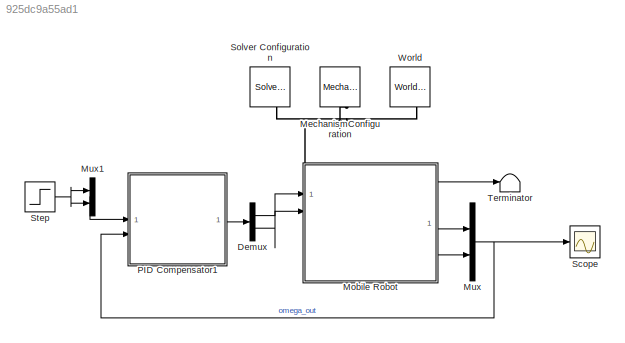
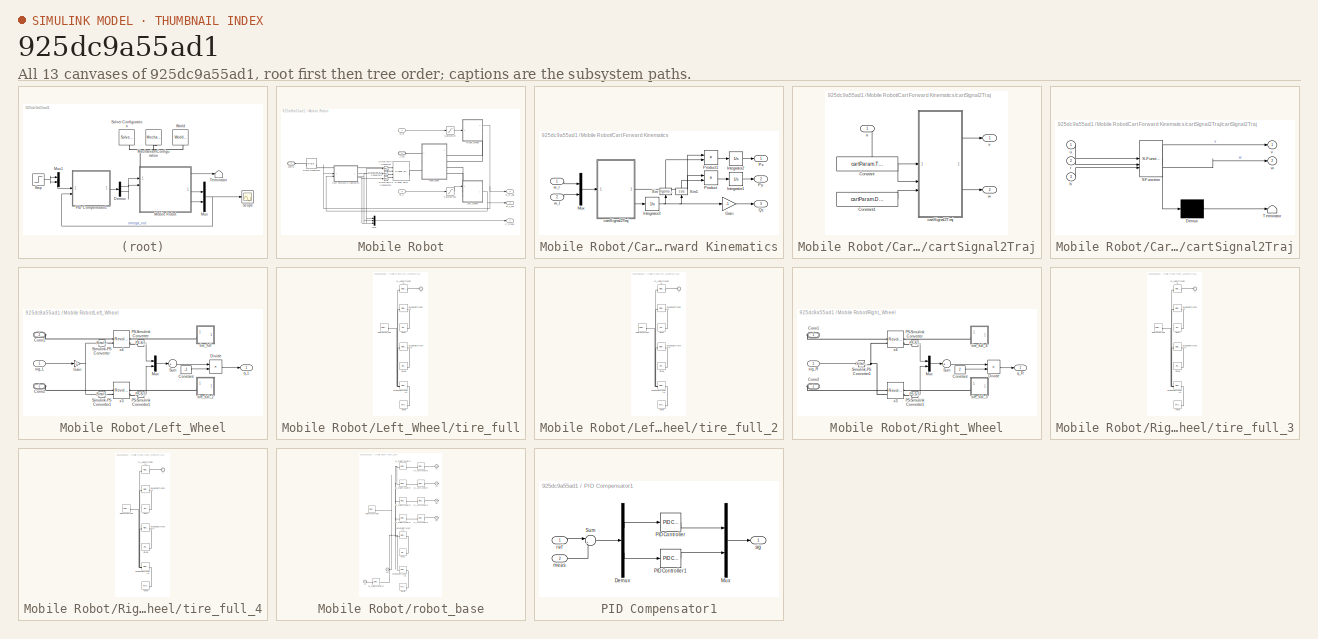
[diagram: thumbnail index - all 13 canvases of the model, root first then tree order]
MODEL slx_925dc9a55ad1
KIND model
CONFIG AbsTol = auto
CONFIG EnableMultiTasking = off
CONFIG FixedStep = auto
CONFIG MaxStep = auto
CONFIG MinStep = auto
CONFIG RelTol = 1e-3
CONFIG SampleTimeConstraint = Unconstrained
CONFIG SolverName = VariableStepAuto
CONFIG StartTime = 0.0
CONFIG StopTime = 3
BLOCK [Demux] Demux
  Outputs = 2
BLOCK [Reference] MechanismConfiguration  REF=sm_lib/Utilities/Mechanism
Configuration
  NameLocation = left
  SourceBlock = sm_lib/Utilities/Mechanism\nConfiguration
  SourceType = Mechanism\nConfiguration
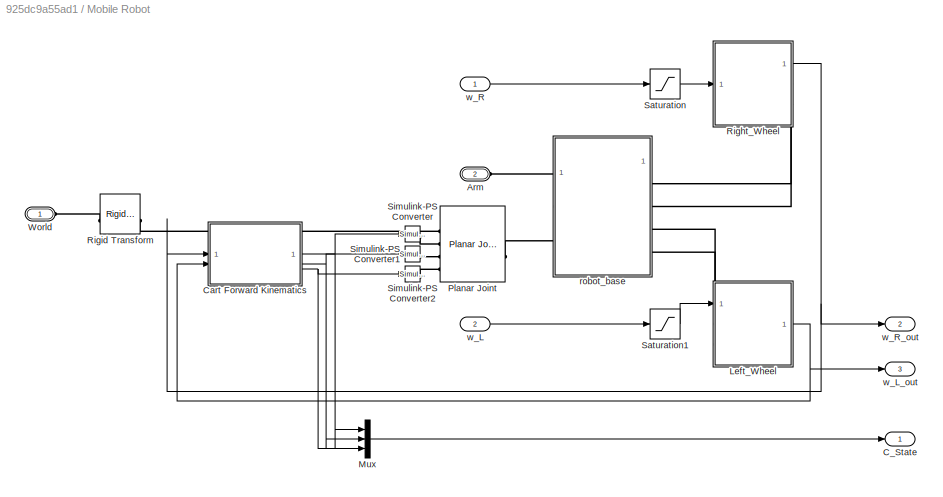
BLOCK [SubSystem] Mobile Robot
  PortSchema = {"entries":[{"content":{"sides":[{"content":{"connectorIds":["In1","In2"]},"type":"ConnectorPlacement.EquallySpacedRectSide","uuid":"d865e24f-6e94-4741-8663-2233d7cc6fe3"},{"content":{"connectorIds":["Out1","Out2","Out3"],"side":"RIGHT"},"type":"ConnectorPlacement.EquallySpacedRectSide","uuid":"e7ebc92e-d028-4010-9d41-bb6c59c0597a"},{"content":{"connectorIds":["LConn1","LConn2"],"side":"TOP"},"typ...<+277ch>
BLOCK [PMIOPort] Mobile Robot/Arm
  Port = 2
  Side = Left
BLOCK [Outport] Mobile Robot/C_State
BLOCK [SubSystem] Mobile Robot/Cart Forward Kinematics
BLOCK [Gain] Mobile Robot/Cart Forward Kinematics/Gain
  Gain = -1
BLOCK [Integrator] Mobile Robot/Cart Forward Kinematics/Integrator1
BLOCK [Integrator] Mobile Robot/Cart Forward Kinematics/Integrator2
BLOCK [Integrator] Mobile Robot/Cart Forward Kinematics/Integrator3
BLOCK [Mux] Mobile Robot/Cart Forward Kinematics/Mux
  DisplayOption = bar
  Inputs = 2
BLOCK [Product] Mobile Robot/Cart Forward Kinematics/Product
BLOCK [Product] Mobile Robot/Cart Forward Kinematics/Product1
BLOCK [Outport] Mobile Robot/Cart Forward Kinematics/Px
BLOCK [Outport] Mobile Robot/Cart Forward Kinematics/Py
  Port = 2
BLOCK [Outport] Mobile Robot/Cart Forward Kinematics/Qz
  Port = 3
BLOCK [Trigonometry] Mobile Robot/Cart Forward Kinematics/Sin
  NameLocation = right
BLOCK [Trigonometry] Mobile Robot/Cart Forward Kinematics/Sin1
  NameLocation = right
  Operator = cos
BLOCK [SubSystem] Mobile Robot/Cart Forward Kinematics/cartSignal2Traj
BLOCK [Constant] Mobile Robot/Cart Forward Kinematics/cartSignal2Traj/Constant
  Value = cartParam.TireRadius
BLOCK [Constant] Mobile Robot/Cart Forward Kinematics/cartSignal2Traj/Constant1
  Value = cartParam.DistanceBwTires
BLOCK [SubSystem] Mobile Robot/Cart Forward Kinematics/cartSignal2Traj/cartSignal2Traj
  ErrorFcn = Stateflow.Translate.translate
  LibrarySourceBlock = simulink/User-Defined\nFunctions/MATLAB Function
  PermitHierarchicalResolution = ExplicitOnly
  SFBlockType = MATLAB Function
  TreatAsAtomicUnit = on
BLOCK [Demux] Mobile Robot/Cart Forward Kinematics/cartSignal2Traj/cartSignal2Traj/ Demux 
  Outputs = 1
BLOCK [S-Function] Mobile Robot/Cart Forward Kinematics/cartSignal2Traj/cartSignal2Traj/ SFunction 
  EnableBusSupport = on
  FunctionName = sf_sfun
  PortCounts = [3 3]
  SFcnIsStateOwnerBlock = off
  SFunctionDeploymentMode = off
  Tag = Stateflow S-Function 5
BLOCK [Terminator] Mobile Robot/Cart Forward Kinematics/cartSignal2Traj/cartSignal2Traj/ Terminator 
BLOCK [Inport] Mobile Robot/Cart Forward Kinematics/cartSignal2Traj/cartSignal2Traj/b
  Port = 3
BLOCK [Inport] Mobile Robot/Cart Forward Kinematics/cartSignal2Traj/cartSignal2Traj/r
  Port = 2
BLOCK [Inport] Mobile Robot/Cart Forward Kinematics/cartSignal2Traj/cartSignal2Traj/u
BLOCK [Outport] Mobile Robot/Cart Forward Kinematics/cartSignal2Traj/cartSignal2Traj/v
BLOCK [Outport] Mobile Robot/Cart Forward Kinematics/cartSignal2Traj/cartSignal2Traj/w
  Port = 2
BLOCK [Inport] Mobile Robot/Cart Forward Kinematics/cartSignal2Traj/u
BLOCK [Outport] Mobile Robot/Cart Forward Kinematics/cartSignal2Traj/v
BLOCK [Outport] Mobile Robot/Cart Forward Kinematics/cartSignal2Traj/w
  Port = 2
BLOCK [Inport] Mobile Robot/Cart Forward Kinematics/w_l
  Port = 2
BLOCK [Inport] Mobile Robot/Cart Forward Kinematics/w_r
BLOCK [SubSystem] Mobile Robot/Left_Wheel
  PortSchema = {"entries":[{"content":{"sides":[{"content":{"connectorIds":["In1"]},"type":"ConnectorPlacement.EquallySpacedRectSide","uuid":"fd18bf8d-3737-4723-9876-24822d4defed"},{"content":{"connectorIds":["Out1"],"side":"RIGHT"},"type":"ConnectorPlacement.EquallySpacedRectSide","uuid":"10024688-4880-4c6e-a930-73264966df0e"},{"content":{"connectorIds":["LConn1","LConn2"],"side":"TOP"},"type":"ConnectorPlaceme...<+383ch>
BLOCK [PMIOPort] Mobile Robot/Left_Wheel/Conn1
  Port = 2
  Side = Left
BLOCK [PMIOPort] Mobile Robot/Left_Wheel/Conn2
  Side = Left
BLOCK [Constant] Mobile Robot/Left_Wheel/Constant
  Value = -2
BLOCK [Product] Mobile Robot/Left_Wheel/Divide
  Inputs = */
BLOCK [Gain] Mobile Robot/Left_Wheel/Gain
  Gain = -1
BLOCK [Mux] Mobile Robot/Left_Wheel/Mux
  DisplayOption = bar
  Inputs = 2
BLOCK [Reference] Mobile Robot/Left_Wheel/PS-Simulink Converter  REF=nesl_utility/PS-Simulink
Converter
  SourceBlock = nesl_utility/PS-Simulink\nConverter
  SourceType = PS-Simulink\nConverter
BLOCK [Reference] Mobile Robot/Left_Wheel/PS-Simulink Converter1  REF=nesl_utility/PS-Simulink
Converter
  SourceBlock = nesl_utility/PS-Simulink\nConverter
  SourceType = PS-Simulink\nConverter
BLOCK [Reference] Mobile Robot/Left_Wheel/Simulink-PS Converter  REF=nesl_utility/Simulink-PS
Converter
  SourceBlock = nesl_utility/Simulink-PS\nConverter
  SourceType = Simulink-PS\nConverter
BLOCK [Reference] Mobile Robot/Left_Wheel/Simulink-PS Converter1  REF=nesl_utility/Simulink-PS
Converter
  SourceBlock = nesl_utility/Simulink-PS\nConverter
  SourceType = Simulink-PS\nConverter
BLOCK [Sum] Mobile Robot/Left_Wheel/Sum
  Inputs = +
BLOCK [Outport] Mobile Robot/Left_Wheel/q_L
BLOCK [Inport] Mobile Robot/Left_Wheel/sig_L
BLOCK [SubSystem] Mobile Robot/Left_Wheel/tire_full
BLOCK [PMIOPort] Mobile Robot/Left_Wheel/tire_full/F
  Side = Left
BLOCK [Reference] Mobile Robot/Left_Wheel/tire_full/Inertia  REF=sm_lib/Body Elements/Inertia
  SourceBlock = sm_lib/Body Elements/Inertia
  SourceType = Inertia
BLOCK [Reference] Mobile Robot/Left_Wheel/tire_full/InertiaOriginTransform  REF=sm_lib/Frames and
Transforms/Rigid
Transform
  SourceBlock = sm_lib/Frames and\nTransforms/Rigid\nTransform
  SourceType = Rigid\nTransform
BLOCK [Reference] Mobile Robot/Left_Wheel/tire_full/ReferenceFrame  REF=sm_lib/Frames and
Transforms/Reference
Frame
  SourceBlock = sm_lib/Frames and\nTransforms/Reference\nFrame
  SourceType = Reference\nFrame
BLOCK [Reference] Mobile Robot/Left_Wheel/tire_full/Visual  REF=sm_lib/Body Elements/File Solid
  SourceBlock = sm_lib/Body Elements/File Solid
  SourceType = File Solid
BLOCK [Reference] Mobile Robot/Left_Wheel/tire_full/Visual1  REF=sm_lib/Body Elements/File Solid
  SourceBlock = sm_lib/Body Elements/File Solid
  SourceType = File Solid
BLOCK [Reference] Mobile Robot/Left_Wheel/tire_full/VisualOrigin1Transform  REF=sm_lib/Frames and
Transforms/Rigid
Transform
  SourceBlock = sm_lib/Frames and\nTransforms/Rigid\nTransform
  SourceType = Rigid\nTransform
BLOCK [Reference] Mobile Robot/Left_Wheel/tire_full/VisualOriginTransform  REF=sm_lib/Frames and
Transforms/Rigid
Transform
  SourceBlock = sm_lib/Frames and\nTransforms/Rigid\nTransform
  SourceType = Rigid\nTransform
BLOCK [Reference] Mobile Robot/Left_Wheel/tire_full/x1_AxisInvTransform  REF=sm_lib/Frames and
Transforms/Rigid
Transform
  SourceBlock = sm_lib/Frames and\nTransforms/Rigid\nTransform
  SourceType = Rigid\nTransform
BLOCK [SubSystem] Mobile Robot/Left_Wheel/tire_full_2
BLOCK [PMIOPort] Mobile Robot/Left_Wheel/tire_full_2/F
  Side = Left
BLOCK [Reference] Mobile Robot/Left_Wheel/tire_full_2/Inertia  REF=sm_lib/Body Elements/Inertia
  SourceBlock = sm_lib/Body Elements/Inertia
  SourceType = Inertia
BLOCK [Reference] Mobile Robot/Left_Wheel/tire_full_2/InertiaOriginTransform  REF=sm_lib/Frames and
Transforms/Rigid
Transform
  SourceBlock = sm_lib/Frames and\nTransforms/Rigid\nTransform
  SourceType = Rigid\nTransform
BLOCK [Reference] Mobile Robot/Left_Wheel/tire_full_2/ReferenceFrame  REF=sm_lib/Frames and
Transforms/Reference
Frame
  SourceBlock = sm_lib/Frames and\nTransforms/Reference\nFrame
  SourceType = Reference\nFrame
BLOCK [Reference] Mobile Robot/Left_Wheel/tire_full_2/Visual  REF=sm_lib/Body Elements/File Solid
  SourceBlock = sm_lib/Body Elements/File Solid
  SourceType = File Solid
BLOCK [Reference] Mobile Robot/Left_Wheel/tire_full_2/Visual1  REF=sm_lib/Body Elements/File Solid
  SourceBlock = sm_lib/Body Elements/File Solid
  SourceType = File Solid
BLOCK [Reference] Mobile Robot/Left_Wheel/tire_full_2/VisualOrigin1Transform  REF=sm_lib/Frames and
Transforms/Rigid
Transform
  SourceBlock = sm_lib/Frames and\nTransforms/Rigid\nTransform
  SourceType = Rigid\nTransform
BLOCK [Reference] Mobile Robot/Left_Wheel/tire_full_2/VisualOriginTransform  REF=sm_lib/Frames and
Transforms/Rigid
Transform
  SourceBlock = sm_lib/Frames and\nTransforms/Rigid\nTransform
  SourceType = Rigid\nTransform
BLOCK [Reference] Mobile Robot/Left_Wheel/tire_full_2/x2_AxisInvTransform  REF=sm_lib/Frames and
Transforms/Rigid
Transform
  SourceBlock = sm_lib/Frames and\nTransforms/Rigid\nTransform
  SourceType = Rigid\nTransform
BLOCK [Reference] Mobile Robot/Left_Wheel/x3  REF=sm_lib/Joints/Revolute Joint
  SourceBlock = sm_lib/Joints/Revolute Joint
  SourceType = Revolute Joint
BLOCK [Reference] Mobile Robot/Left_Wheel/x4  REF=sm_lib/Joints/Revolute Joint
  SourceBlock = sm_lib/Joints/Revolute Joint
  SourceType = Revolute Joint
BLOCK [Mux] Mobile Robot/Mux
  DisplayOption = bar
  Inputs = 3
BLOCK [Reference] Mobile Robot/Planar Joint  REF=sm_lib/Joints/Planar Joint
  SourceBlock = sm_lib/Joints/Planar Joint
  SourceType = Planar Joint
BLOCK [SubSystem] Mobile Robot/Right_Wheel
  NameLocation = top
  PortSchema = {"entries":[{"content":{"sides":[{"content":{"connectorIds":["In1"]},"type":"ConnectorPlacement.EquallySpacedRectSide","uuid":"fd18bf8d-3737-4723-9876-24822d4defed"},{"content":{"connectorIds":["Out1"],"side":"RIGHT"},"type":"ConnectorPlacement.EquallySpacedRectSide","uuid":"10024688-4880-4c6e-a930-73264966df0e"},{"content":{"side":"TOP"},"type":"ConnectorPlacement.EquallySpacedRectSide","uuid":"d...<+383ch>
BLOCK [PMIOPort] Mobile Robot/Right_Wheel/Conn1
  Side = Right
BLOCK [PMIOPort] Mobile Robot/Right_Wheel/Conn2
  Port = 2
  Side = Right
BLOCK [Constant] Mobile Robot/Right_Wheel/Constant
  Value = 2
BLOCK [Product] Mobile Robot/Right_Wheel/Divide
  Inputs = */
BLOCK [Mux] Mobile Robot/Right_Wheel/Mux
  DisplayOption = bar
  Inputs = 2
BLOCK [Reference] Mobile Robot/Right_Wheel/PS-Simulink Converter  REF=nesl_utility/PS-Simulink
Converter
  SourceBlock = nesl_utility/PS-Simulink\nConverter
  SourceType = PS-Simulink\nConverter
BLOCK [Reference] Mobile Robot/Right_Wheel/PS-Simulink Converter1  REF=nesl_utility/PS-Simulink
Converter
  SourceBlock = nesl_utility/PS-Simulink\nConverter
  SourceType = PS-Simulink\nConverter
BLOCK [Reference] Mobile Robot/Right_Wheel/Simulink-PS Converter1  REF=nesl_utility/Simulink-PS
Converter
  SourceBlock = nesl_utility/Simulink-PS\nConverter
  SourceType = Simulink-PS\nConverter
BLOCK [Sum] Mobile Robot/Right_Wheel/Sum
  Inputs = +
BLOCK [Outport] Mobile Robot/Right_Wheel/q_R
BLOCK [Inport] Mobile Robot/Right_Wheel/sig_R
BLOCK [SubSystem] Mobile Robot/Right_Wheel/tire_full_3
BLOCK [PMIOPort] Mobile Robot/Right_Wheel/tire_full_3/F
  Side = Left
BLOCK [Reference] Mobile Robot/Right_Wheel/tire_full_3/Inertia  REF=sm_lib/Body Elements/Inertia
  SourceBlock = sm_lib/Body Elements/Inertia
  SourceType = Inertia
BLOCK [Reference] Mobile Robot/Right_Wheel/tire_full_3/InertiaOriginTransform  REF=sm_lib/Frames and
Transforms/Rigid
Transform
  SourceBlock = sm_lib/Frames and\nTransforms/Rigid\nTransform
  SourceType = Rigid\nTransform
BLOCK [Reference] Mobile Robot/Right_Wheel/tire_full_3/ReferenceFrame  REF=sm_lib/Frames and
Transforms/Reference
Frame
  SourceBlock = sm_lib/Frames and\nTransforms/Reference\nFrame
  SourceType = Reference\nFrame
BLOCK [Reference] Mobile Robot/Right_Wheel/tire_full_3/Visual  REF=sm_lib/Body Elements/File Solid
  SourceBlock = sm_lib/Body Elements/File Solid
  SourceType = File Solid
BLOCK [Reference] Mobile Robot/Right_Wheel/tire_full_3/Visual1  REF=sm_lib/Body Elements/File Solid
  SourceBlock = sm_lib/Body Elements/File Solid
  SourceType = File Solid
BLOCK [Reference] Mobile Robot/Right_Wheel/tire_full_3/VisualOrigin1Transform  REF=sm_lib/Frames and
Transforms/Rigid
Transform
  SourceBlock = sm_lib/Frames and\nTransforms/Rigid\nTransform
  SourceType = Rigid\nTransform
BLOCK [Reference] Mobile Robot/Right_Wheel/tire_full_3/VisualOriginTransform  REF=sm_lib/Frames and
Transforms/Rigid
Transform
  SourceBlock = sm_lib/Frames and\nTransforms/Rigid\nTransform
  SourceType = Rigid\nTransform
BLOCK [Reference] Mobile Robot/Right_Wheel/tire_full_3/x3_AxisInvTransform  REF=sm_lib/Frames and
Transforms/Rigid
Transform
  SourceBlock = sm_lib/Frames and\nTransforms/Rigid\nTransform
  SourceType = Rigid\nTransform
BLOCK [SubSystem] Mobile Robot/Right_Wheel/tire_full_4
BLOCK [PMIOPort] Mobile Robot/Right_Wheel/tire_full_4/F
  Side = Left
BLOCK [Reference] Mobile Robot/Right_Wheel/tire_full_4/Inertia  REF=sm_lib/Body Elements/Inertia
  SourceBlock = sm_lib/Body Elements/Inertia
  SourceType = Inertia
BLOCK [Reference] Mobile Robot/Right_Wheel/tire_full_4/InertiaOriginTransform  REF=sm_lib/Frames and
Transforms/Rigid
Transform
  SourceBlock = sm_lib/Frames and\nTransforms/Rigid\nTransform
  SourceType = Rigid\nTransform
BLOCK [Reference] Mobile Robot/Right_Wheel/tire_full_4/ReferenceFrame  REF=sm_lib/Frames and
Transforms/Reference
Frame
  SourceBlock = sm_lib/Frames and\nTransforms/Reference\nFrame
  SourceType = Reference\nFrame
BLOCK [Reference] Mobile Robot/Right_Wheel/tire_full_4/Visual  REF=sm_lib/Body Elements/File Solid
  SourceBlock = sm_lib/Body Elements/File Solid
  SourceType = File Solid
BLOCK [Reference] Mobile Robot/Right_Wheel/tire_full_4/Visual1  REF=sm_lib/Body Elements/File Solid
  SourceBlock = sm_lib/Body Elements/File Solid
  SourceType = File Solid
BLOCK [Reference] Mobile Robot/Right_Wheel/tire_full_4/VisualOrigin1Transform  REF=sm_lib/Frames and
Transforms/Rigid
Transform
  SourceBlock = sm_lib/Frames and\nTransforms/Rigid\nTransform
  SourceType = Rigid\nTransform
BLOCK [Reference] Mobile Robot/Right_Wheel/tire_full_4/VisualOriginTransform  REF=sm_lib/Frames and
Transforms/Rigid
Transform
  SourceBlock = sm_lib/Frames and\nTransforms/Rigid\nTransform
  SourceType = Rigid\nTransform
BLOCK [Reference] Mobile Robot/Right_Wheel/tire_full_4/x4_AxisInvTransform  REF=sm_lib/Frames and
Transforms/Rigid
Transform
  SourceBlock = sm_lib/Frames and\nTransforms/Rigid\nTransform
  SourceType = Rigid\nTransform
BLOCK [Reference] Mobile Robot/Right_Wheel/x3  REF=sm_lib/Joints/Revolute Joint
  SourceBlock = sm_lib/Joints/Revolute Joint
  SourceType = Revolute Joint
BLOCK [Reference] Mobile Robot/Right_Wheel/x4  REF=sm_lib/Joints/Revolute Joint
  SourceBlock = sm_lib/Joints/Revolute Joint
  SourceType = Revolute Joint
BLOCK [Reference] Mobile Robot/Rigid Transform  REF=sm_lib/Frames and
Transforms/Rigid
Transform
  SourceBlock = sm_lib/Frames and\nTransforms/Rigid\nTransform
  SourceType = Rigid\nTransform
BLOCK [Saturate] Mobile Robot/Saturation
  Commented = through
  LowerLimit = -cartParam.motorSpeed
  UpperLimit = cartParam.motorSpeed
BLOCK [Saturate] Mobile Robot/Saturation1
  Commented = through
  LowerLimit = -cartParam.motorSpeed
  UpperLimit = cartParam.motorSpeed
BLOCK [Reference] Mobile Robot/Simulink-PS Converter  REF=nesl_utility/Simulink-PS
Converter
  SourceBlock = nesl_utility/Simulink-PS\nConverter
  SourceType = Simulink-PS\nConverter
BLOCK [Reference] Mobile Robot/Simulink-PS Converter1  REF=nesl_utility/Simulink-PS
Converter
  SourceBlock = nesl_utility/Simulink-PS\nConverter
  SourceType = Simulink-PS\nConverter
BLOCK [Reference] Mobile Robot/Simulink-PS Converter2  REF=nesl_utility/Simulink-PS
Converter
  SourceBlock = nesl_utility/Simulink-PS\nConverter
  SourceType = Simulink-PS\nConverter
BLOCK [PMIOPort] Mobile Robot/World
  Side = Left
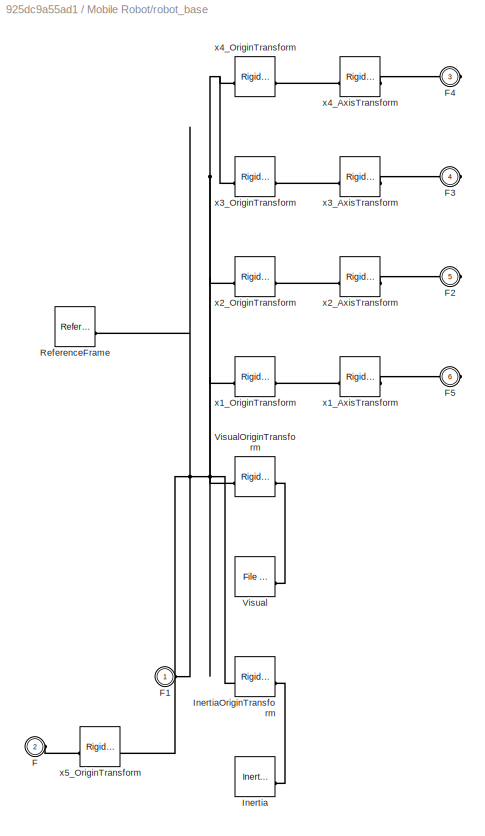
BLOCK [SubSystem] Mobile Robot/robot_base
BLOCK [PMIOPort] Mobile Robot/robot_base/F
  Port = 2
  Side = Left
BLOCK [PMIOPort] Mobile Robot/robot_base/F1
  Side = Left
BLOCK [PMIOPort] Mobile Robot/robot_base/F2
  Port = 5
  Side = Right
BLOCK [PMIOPort] Mobile Robot/robot_base/F3
  Port = 4
  Side = Right
BLOCK [PMIOPort] Mobile Robot/robot_base/F4
  Port = 3
  Side = Right
BLOCK [PMIOPort] Mobile Robot/robot_base/F5
  Port = 6
  Side = Right
BLOCK [Reference] Mobile Robot/robot_base/Inertia  REF=sm_lib/Body Elements/Inertia
  SourceBlock = sm_lib/Body Elements/Inertia
  SourceType = Inertia
BLOCK [Reference] Mobile Robot/robot_base/InertiaOriginTransform  REF=sm_lib/Frames and
Transforms/Rigid
Transform
  SourceBlock = sm_lib/Frames and\nTransforms/Rigid\nTransform
  SourceType = Rigid\nTransform
BLOCK [Reference] Mobile Robot/robot_base/ReferenceFrame  REF=sm_lib/Frames and
Transforms/Reference
Frame
  SourceBlock = sm_lib/Frames and\nTransforms/Reference\nFrame
  SourceType = Reference\nFrame
BLOCK [Reference] Mobile Robot/robot_base/Visual  REF=sm_lib/Body Elements/File Solid
  SourceBlock = sm_lib/Body Elements/File Solid
  SourceType = File Solid
BLOCK [Reference] Mobile Robot/robot_base/VisualOriginTransform  REF=sm_lib/Frames and
Transforms/Rigid
Transform
  SourceBlock = sm_lib/Frames and\nTransforms/Rigid\nTransform
  SourceType = Rigid\nTransform
BLOCK [Reference] Mobile Robot/robot_base/x1_AxisTransform  REF=sm_lib/Frames and
Transforms/Rigid
Transform
  SourceBlock = sm_lib/Frames and\nTransforms/Rigid\nTransform
  SourceType = Rigid\nTransform
BLOCK [Reference] Mobile Robot/robot_base/x1_OriginTransform  REF=sm_lib/Frames and
Transforms/Rigid
Transform
  SourceBlock = sm_lib/Frames and\nTransforms/Rigid\nTransform
  SourceType = Rigid\nTransform
BLOCK [Reference] Mobile Robot/robot_base/x2_AxisTransform  REF=sm_lib/Frames and
Transforms/Rigid
Transform
  SourceBlock = sm_lib/Frames and\nTransforms/Rigid\nTransform
  SourceType = Rigid\nTransform
BLOCK [Reference] Mobile Robot/robot_base/x2_OriginTransform  REF=sm_lib/Frames and
Transforms/Rigid
Transform
  SourceBlock = sm_lib/Frames and\nTransforms/Rigid\nTransform
  SourceType = Rigid\nTransform
BLOCK [Reference] Mobile Robot/robot_base/x3_AxisTransform  REF=sm_lib/Frames and
Transforms/Rigid
Transform
  SourceBlock = sm_lib/Frames and\nTransforms/Rigid\nTransform
  SourceType = Rigid\nTransform
BLOCK [Reference] Mobile Robot/robot_base/x3_OriginTransform  REF=sm_lib/Frames and
Transforms/Rigid
Transform
  SourceBlock = sm_lib/Frames and\nTransforms/Rigid\nTransform
  SourceType = Rigid\nTransform
BLOCK [Reference] Mobile Robot/robot_base/x4_AxisTransform  REF=sm_lib/Frames and
Transforms/Rigid
Transform
  SourceBlock = sm_lib/Frames and\nTransforms/Rigid\nTransform
  SourceType = Rigid\nTransform
BLOCK [Reference] Mobile Robot/robot_base/x4_OriginTransform  REF=sm_lib/Frames and
Transforms/Rigid
Transform
  SourceBlock = sm_lib/Frames and\nTransforms/Rigid\nTransform
  SourceType = Rigid\nTransform
BLOCK [Reference] Mobile Robot/robot_base/x5_OriginTransform  REF=sm_lib/Frames and
Transforms/Rigid
Transform
  NameLocation = top
  SourceBlock = sm_lib/Frames and\nTransforms/Rigid\nTransform
  SourceType = Rigid\nTransform
BLOCK [Inport] Mobile Robot/w_L
  Port = 2
BLOCK [Outport] Mobile Robot/w_L_out
  Port = 3
BLOCK [Inport] Mobile Robot/w_R
BLOCK [Outport] Mobile Robot/w_R_out
  Port = 2
BLOCK [Mux] Mux
  DisplayOption = bar
  Inputs = 2
BLOCK [Mux] Mux1
  DisplayOption = bar
  Inputs = 2
BLOCK [SubSystem] PID Compensator1
BLOCK [Demux] PID Compensator1/Demux
  Outputs = 2
BLOCK [Mux] PID Compensator1/Mux
  DisplayOption = bar
  Inputs = 2
BLOCK [Reference] PID Compensator1/PID Controller  REF=slpidlib/PID Controller
  LibrarySourceBlock = simulink/Continuous/PID Controller
  SourceBlock = slpidlib/PID Controller
  SourceType = PID 1dof
BLOCK [Reference] PID Compensator1/PID Controller1  REF=slpidlib/PID Controller
  LibrarySourceBlock = simulink/Continuous/PID Controller
  SourceBlock = slpidlib/PID Controller
  SourceType = PID 1dof
BLOCK [Sum] PID Compensator1/Sum
  Inputs = |+-
BLOCK [Inport] PID Compensator1/meas
  Port = 2
BLOCK [Inport] PID Compensator1/ref
BLOCK [Outport] PID Compensator1/sig
BLOCK [Scope] Scope
  Floating = off
  NumInputPorts = 1
  ScopeSpecificationString = Simulink.scopes.TimeScopeBlockCfg('CurrentConfiguration', extmgr.ConfigurationSet(extmgr.Configuration('Core','General UI',true),extmgr.Configuration('Core','Source UI',true),extmgr.Configuration('Sources','WiredSimulink',true),extmgr.Configuration('Visuals','Time Domain',true,'SerializedDisplays',{struct('MinYLimReal','-0.12526','MaxYLimReal','1.12713','YLabelReal','','MinYLimMag','0.00000','MaxY...<+1396ch>
BLOCK [Reference] Solver Configuration  REF=nesl_utility/Solver
Configuration
  NameLocation = left
  SourceBlock = nesl_utility/Solver\nConfiguration
  SourceType = Solver\nConfiguration
BLOCK [Step] Step
  SampleTime = 0
BLOCK [Terminator] Terminator
BLOCK [Reference] World  REF=sm_lib/Frames and
Transforms/World Frame
  NameLocation = top
  SourceBlock = sm_lib/Frames and\nTransforms/World Frame
  SourceType = World Frame
LINE Demux:1 -> Mobile Robot:1
LINE Demux:2 -> Mobile Robot:2
LINE Mobile Robot/Cart Forward Kinematics/Gain:1 -> Mobile Robot/Cart Forward Kinematics/Qz:1
LINE Mobile Robot/Cart Forward Kinematics/Integrator1:1 -> Mobile Robot/Cart Forward Kinematics/Py:1
LINE Mobile Robot/Cart Forward Kinematics/Integrator2:1 -> Mobile Robot/Cart Forward Kinematics/Px:1
NET Mobile Robot/Cart Forward Kinematics/Integrator3:1 -> Mobile Robot/Cart Forward Kinematics/Gain:1, Mobile Robot/Cart Forward Kinematics/Sin1:1, Mobile Robot/Cart Forward Kinematics/Sin:1
LINE Mobile Robot/Cart Forward Kinematics/Mux:1 -> Mobile Robot/Cart Forward Kinematics/cartSignal2Traj:1
LINE Mobile Robot/Cart Forward Kinematics/Product1:1 -> Mobile Robot/Cart Forward Kinematics/Integrator2:1
LINE Mobile Robot/Cart Forward Kinematics/Product:1 -> Mobile Robot/Cart Forward Kinematics/Integrator1:1
LINE Mobile Robot/Cart Forward Kinematics/Sin1:1 -> Mobile Robot/Cart Forward Kinematics/Product:2
LINE Mobile Robot/Cart Forward Kinematics/Sin:1 -> Mobile Robot/Cart Forward Kinematics/Product1:2
LINE Mobile Robot/Cart Forward Kinematics/cartSignal2Traj/Constant1:1 -> Mobile Robot/Cart Forward Kinematics/cartSignal2Traj/cartSignal2Traj:3
LINE Mobile Robot/Cart Forward Kinematics/cartSignal2Traj/Constant:1 -> Mobile Robot/Cart Forward Kinematics/cartSignal2Traj/cartSignal2Traj:2
LINE Mobile Robot/Cart Forward Kinematics/cartSignal2Traj/cartSignal2Traj:1 -> Mobile Robot/Cart Forward Kinematics/cartSignal2Traj/v:1
LINE Mobile Robot/Cart Forward Kinematics/cartSignal2Traj/cartSignal2Traj:2 -> Mobile Robot/Cart Forward Kinematics/cartSignal2Traj/w:1
LINE Mobile Robot/Cart Forward Kinematics/cartSignal2Traj/u:1 -> Mobile Robot/Cart Forward Kinematics/cartSignal2Traj/cartSignal2Traj:1
NET Mobile Robot/Cart Forward Kinematics/cartSignal2Traj:1 -> Mobile Robot/Cart Forward Kinematics/Product1:1, Mobile Robot/Cart Forward Kinematics/Product:1
LINE Mobile Robot/Cart Forward Kinematics/cartSignal2Traj:2 -> Mobile Robot/Cart Forward Kinematics/Integrator3:1
LINE Mobile Robot/Cart Forward Kinematics/w_l:1 -> Mobile Robot/Cart Forward Kinematics/Mux:2
LINE Mobile Robot/Cart Forward Kinematics/w_r:1 -> Mobile Robot/Cart Forward Kinematics/Mux:1
NET Mobile Robot/Cart Forward Kinematics:1 -> Mobile Robot/Mux:1, Mobile Robot/Simulink-PS Converter:1
NET Mobile Robot/Cart Forward Kinematics:2 -> Mobile Robot/Mux:2, Mobile Robot/Simulink-PS Converter1:1
NET Mobile Robot/Cart Forward Kinematics:3 -> Mobile Robot/Mux:3, Mobile Robot/Simulink-PS Converter2:1
LINE Mobile Robot/Left_Wheel/Constant:1 -> Mobile Robot/Left_Wheel/Divide:2
LINE Mobile Robot/Left_Wheel/Divide:1 -> Mobile Robot/Left_Wheel/q_L:1
NET Mobile Robot/Left_Wheel/Gain:1 -> Mobile Robot/Left_Wheel/Simulink-PS Converter1:1, Mobile Robot/Left_Wheel/Simulink-PS Converter:1
LINE Mobile Robot/Left_Wheel/Mux:1 -> Mobile Robot/Left_Wheel/Sum:1
LINE Mobile Robot/Left_Wheel/PS-Simulink Converter1:1 -> Mobile Robot/Left_Wheel/Mux:2
LINE Mobile Robot/Left_Wheel/PS-Simulink Converter:1 -> Mobile Robot/Left_Wheel/Mux:1
LINE Mobile Robot/Left_Wheel/Sum:1 -> Mobile Robot/Left_Wheel/Divide:1
LINE Mobile Robot/Left_Wheel/sig_L:1 -> Mobile Robot/Left_Wheel/Gain:1
NET Mobile Robot/Left_Wheel:1 -> Mobile Robot/Cart Forward Kinematics:2, Mobile Robot/w_L_out:1
LINE Mobile Robot/Mux:1 -> Mobile Robot/C_State:1
LINE Mobile Robot/Right_Wheel/Constant:1 -> Mobile Robot/Right_Wheel/Divide:2
LINE Mobile Robot/Right_Wheel/Divide:1 -> Mobile Robot/Right_Wheel/q_R:1
LINE Mobile Robot/Right_Wheel/Mux:1 -> Mobile Robot/Right_Wheel/Sum:1
LINE Mobile Robot/Right_Wheel/PS-Simulink Converter1:1 -> Mobile Robot/Right_Wheel/Mux:2
LINE Mobile Robot/Right_Wheel/PS-Simulink Converter:1 -> Mobile Robot/Right_Wheel/Mux:1
LINE Mobile Robot/Right_Wheel/Sum:1 -> Mobile Robot/Right_Wheel/Divide:1
LINE Mobile Robot/Right_Wheel/sig_R:1 -> Mobile Robot/Right_Wheel/Simulink-PS Converter1:1
NET Mobile Robot/Right_Wheel:1 -> Mobile Robot/Cart Forward Kinematics:1, Mobile Robot/w_R_out:1
LINE Mobile Robot/Saturation1:1 -> Mobile Robot/Left_Wheel:1
LINE Mobile Robot/Saturation:1 -> Mobile Robot/Right_Wheel:1
LINE Mobile Robot/w_L:1 -> Mobile Robot/Saturation1:1
LINE Mobile Robot/w_R:1 -> Mobile Robot/Saturation:1
LINE Mobile Robot:1 -> Terminator:1
LINE Mobile Robot:2 -> Mux:1
LINE Mobile Robot:3 -> Mux:2
LINE Mux1:1 -> PID Compensator1:1
NET Mux:1 -> PID Compensator1:2, Scope:1
LINE PID Compensator1/Demux:1 -> PID Compensator1/PID Controller:1
LINE PID Compensator1/Demux:2 -> PID Compensator1/PID Controller1:1
LINE PID Compensator1/Mux:1 -> PID Compensator1/sig:1
LINE PID Compensator1/PID Controller1:1 -> PID Compensator1/Mux:2
LINE PID Compensator1/PID Controller:1 -> PID Compensator1/Mux:1
LINE PID Compensator1/Sum:1 -> PID Compensator1/Demux:1
LINE PID Compensator1/meas:1 -> PID Compensator1/Sum:2
LINE PID Compensator1/ref:1 -> PID Compensator1/Sum:1
LINE PID Compensator1:1 -> Demux:1
NET Step:1 -> Mux1:1, Mux1:2
PNET net1: MechanismConfiguration:RConn1 -- Mobile Robot:LConn1 -- Solver Configuration:RConn1 -- World:RConn1
PLINE Mobile Robot/Arm:RConn1 -- Mobile Robot/robot_base:LConn1
PLINE Mobile Robot/Left_Wheel/Conn1:RConn1 -- Mobile Robot/Left_Wheel/x4:LConn1
PLINE Mobile Robot/Left_Wheel/Conn2:RConn1 -- Mobile Robot/Left_Wheel/x3:LConn1
PLINE Mobile Robot/Left_Wheel/PS-Simulink Converter1:LConn1 -- Mobile Robot/Left_Wheel/x3:RConn2
PLINE Mobile Robot/Left_Wheel/PS-Simulink Converter:LConn1 -- Mobile Robot/Left_Wheel/x4:RConn2
PLINE Mobile Robot/Left_Wheel/Simulink-PS Converter1:RConn1 -- Mobile Robot/Left_Wheel/x3:LConn2
PLINE Mobile Robot/Left_Wheel/Simulink-PS Converter:RConn1 -- Mobile Robot/Left_Wheel/x4:LConn2
PLINE Mobile Robot/Left_Wheel/tire_full/F:RConn1 -- Mobile Robot/Left_Wheel/tire_full/x1_AxisInvTransform:RConn1
PLINE Mobile Robot/Left_Wheel/tire_full/Inertia:RConn1 -- Mobile Robot/Left_Wheel/tire_full/InertiaOriginTransform:RConn1
PNET net2: Mobile Robot/Left_Wheel/tire_full/InertiaOriginTransform:LConn1 -- Mobile Robot/Left_Wheel/tire_full/ReferenceFrame:RConn1 -- Mobile Robot/Left_Wheel/tire_full/VisualOrigin1Transform:LConn1 -- Mobile Robot/Left_Wheel/tire_full/VisualOriginTransform:LConn1 -- Mobile Robot/Left_Wheel/tire_full/x1_AxisInvTransform:LConn1
PLINE Mobile Robot/Left_Wheel/tire_full/Visual1:RConn1 -- Mobile Robot/Left_Wheel/tire_full/VisualOrigin1Transform:RConn1
PLINE Mobile Robot/Left_Wheel/tire_full/Visual:RConn1 -- Mobile Robot/Left_Wheel/tire_full/VisualOriginTransform:RConn1
PLINE Mobile Robot/Left_Wheel/tire_full:LConn1 -- Mobile Robot/Left_Wheel/x4:RConn1
PLINE Mobile Robot/Left_Wheel/tire_full_2/F:RConn1 -- Mobile Robot/Left_Wheel/tire_full_2/x2_AxisInvTransform:RConn1
PLINE Mobile Robot/Left_Wheel/tire_full_2/Inertia:RConn1 -- Mobile Robot/Left_Wheel/tire_full_2/InertiaOriginTransform:RConn1
PNET net3: Mobile Robot/Left_Wheel/tire_full_2/InertiaOriginTransform:LConn1 -- Mobile Robot/Left_Wheel/tire_full_2/ReferenceFrame:RConn1 -- Mobile Robot/Left_Wheel/tire_full_2/VisualOrigin1Transform:LConn1 -- Mobile Robot/Left_Wheel/tire_full_2/VisualOriginTransform:LConn1 -- Mobile Robot/Left_Wheel/tire_full_2/x2_AxisInvTransform:LConn1
PLINE Mobile Robot/Left_Wheel/tire_full_2/Visual1:RConn1 -- Mobile Robot/Left_Wheel/tire_full_2/VisualOrigin1Transform:RConn1
PLINE Mobile Robot/Left_Wheel/tire_full_2/Visual:RConn1 -- Mobile Robot/Left_Wheel/tire_full_2/VisualOriginTransform:RConn1
PLINE Mobile Robot/Left_Wheel/tire_full_2:LConn1 -- Mobile Robot/Left_Wheel/x3:RConn1
PLINE Mobile Robot/Left_Wheel:LConn1 -- Mobile Robot/robot_base:RConn4
PLINE Mobile Robot/Left_Wheel:LConn2 -- Mobile Robot/robot_base:RConn3
PLINE Mobile Robot/Planar Joint:LConn1 -- Mobile Robot/Rigid Transform:RConn1
PLINE Mobile Robot/Planar Joint:LConn2 -- Mobile Robot/Simulink-PS Converter:RConn1
PLINE Mobile Robot/Planar Joint:LConn3 -- Mobile Robot/Simulink-PS Converter1:RConn1
PLINE Mobile Robot/Planar Joint:LConn4 -- Mobile Robot/Simulink-PS Converter2:RConn1
PLINE Mobile Robot/Planar Joint:RConn1 -- Mobile Robot/robot_base:LConn2
PLINE Mobile Robot/Right_Wheel/Conn1:RConn1 -- Mobile Robot/Right_Wheel/x4:LConn1
PLINE Mobile Robot/Right_Wheel/Conn2:RConn1 -- Mobile Robot/Right_Wheel/x3:LConn1
PLINE Mobile Robot/Right_Wheel/PS-Simulink Converter1:LConn1 -- Mobile Robot/Right_Wheel/x3:RConn2
PLINE Mobile Robot/Right_Wheel/PS-Simulink Converter:LConn1 -- Mobile Robot/Right_Wheel/x4:RConn2
PNET net4: Mobile Robot/Right_Wheel/Simulink-PS Converter1:RConn1 -- Mobile Robot/Right_Wheel/x3:LConn2 -- Mobile Robot/Right_Wheel/x4:LConn2
PLINE Mobile Robot/Right_Wheel/tire_full_3/F:RConn1 -- Mobile Robot/Right_Wheel/tire_full_3/x3_AxisInvTransform:RConn1
PLINE Mobile Robot/Right_Wheel/tire_full_3/Inertia:RConn1 -- Mobile Robot/Right_Wheel/tire_full_3/InertiaOriginTransform:RConn1
PNET net5: Mobile Robot/Right_Wheel/tire_full_3/InertiaOriginTransform:LConn1 -- Mobile Robot/Right_Wheel/tire_full_3/ReferenceFrame:RConn1 -- Mobile Robot/Right_Wheel/tire_full_3/VisualOrigin1Transform:LConn1 -- Mobile Robot/Right_Wheel/tire_full_3/VisualOriginTransform:LConn1 -- Mobile Robot/Right_Wheel/tire_full_3/x3_AxisInvTransform:LConn1
PLINE Mobile Robot/Right_Wheel/tire_full_3/Visual1:RConn1 -- Mobile Robot/Right_Wheel/tire_full_3/VisualOrigin1Transform:RConn1
PLINE Mobile Robot/Right_Wheel/tire_full_3/Visual:RConn1 -- Mobile Robot/Right_Wheel/tire_full_3/VisualOriginTransform:RConn1
PLINE Mobile Robot/Right_Wheel/tire_full_3:LConn1 -- Mobile Robot/Right_Wheel/x3:RConn1
PLINE Mobile Robot/Right_Wheel/tire_full_4/F:RConn1 -- Mobile Robot/Right_Wheel/tire_full_4/x4_AxisInvTransform:RConn1
PLINE Mobile Robot/Right_Wheel/tire_full_4/Inertia:RConn1 -- Mobile Robot/Right_Wheel/tire_full_4/InertiaOriginTransform:RConn1
PNET net6: Mobile Robot/Right_Wheel/tire_full_4/InertiaOriginTransform:LConn1 -- Mobile Robot/Right_Wheel/tire_full_4/ReferenceFrame:RConn1 -- Mobile Robot/Right_Wheel/tire_full_4/VisualOrigin1Transform:LConn1 -- Mobile Robot/Right_Wheel/tire_full_4/VisualOriginTransform:LConn1 -- Mobile Robot/Right_Wheel/tire_full_4/x4_AxisInvTransform:LConn1
PLINE Mobile Robot/Right_Wheel/tire_full_4/Visual1:RConn1 -- Mobile Robot/Right_Wheel/tire_full_4/VisualOrigin1Transform:RConn1
PLINE Mobile Robot/Right_Wheel/tire_full_4/Visual:RConn1 -- Mobile Robot/Right_Wheel/tire_full_4/VisualOriginTransform:RConn1
PLINE Mobile Robot/Right_Wheel/tire_full_4:LConn1 -- Mobile Robot/Right_Wheel/x4:RConn1
PLINE Mobile Robot/Right_Wheel:RConn1 -- Mobile Robot/robot_base:RConn1
PLINE Mobile Robot/Right_Wheel:RConn2 -- Mobile Robot/robot_base:RConn2
PLINE Mobile Robot/Rigid Transform:LConn1 -- Mobile Robot/World:RConn1
PNET net7: Mobile Robot/robot_base/F1:RConn1 -- Mobile Robot/robot_base/InertiaOriginTransform:LConn1 -- Mobile Robot/robot_base/ReferenceFrame:RConn1 -- Mobile Robot/robot_base/VisualOriginTransform:LConn1 -- Mobile Robot/robot_base/x1_OriginTransform:LConn1 -- Mobile Robot/robot_base/x2_OriginTransform:LConn1 -- Mobile Robot/robot_base/x3_OriginTransform:LConn1 -- Mobile Robot/robot_base/x4_OriginTransform:LConn1 -- Mobile Robot/robot_base/x5_OriginTransform:LConn1
PLINE Mobile Robot/robot_base/F2:RConn1 -- Mobile Robot/robot_base/x2_AxisTransform:RConn1
PLINE Mobile Robot/robot_base/F3:RConn1 -- Mobile Robot/robot_base/x3_AxisTransform:RConn1
PLINE Mobile Robot/robot_base/F4:RConn1 -- Mobile Robot/robot_base/x4_AxisTransform:RConn1
PLINE Mobile Robot/robot_base/F5:RConn1 -- Mobile Robot/robot_base/x1_AxisTransform:RConn1
PLINE Mobile Robot/robot_base/F:RConn1 -- Mobile Robot/robot_base/x5_OriginTransform:RConn1
PLINE Mobile Robot/robot_base/Inertia:RConn1 -- Mobile Robot/robot_base/InertiaOriginTransform:RConn1
PLINE Mobile Robot/robot_base/Visual:RConn1 -- Mobile Robot/robot_base/VisualOriginTransform:RConn1
PLINE Mobile Robot/robot_base/x1_AxisTransform:LConn1 -- Mobile Robot/robot_base/x1_OriginTransform:RConn1
PLINE Mobile Robot/robot_base/x2_AxisTransform:LConn1 -- Mobile Robot/robot_base/x2_OriginTransform:RConn1
PLINE Mobile Robot/robot_base/x3_AxisTransform:LConn1 -- Mobile Robot/robot_base/x3_OriginTransform:RConn1
PLINE Mobile Robot/robot_base/x4_AxisTransform:LConn1 -- Mobile Robot/robot_base/x4_OriginTransform:RConn1
note: NET lines group one-source signal fan-out (src -> all destinations, sorted); 1:1 wires keep LINE; PNET lines group multi-terminal physical nets as a canonical sorted terminal list (undirected conserving connections); 2-terminal nets keep the pairwise PLINE form
CHART Mobile Robot/Cart Forward Kinematics/cartSignal2Traj/cartSignal2Traj states=1 transitions=1
  STATE_LABEL 'eML_blk_kernel()'
  STATE_LABEL 'SCRIPT:\nfunction [v,w] = cartSignal2Traj(u,r,b)\nv=r*(u(1)+u(2))/2;\nw=r*(u(1)-u(2))/b;\nend'
CHART  states=0 transitions=0
